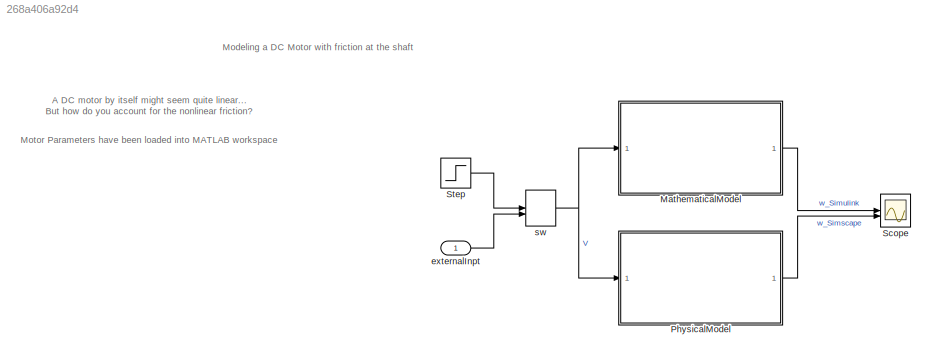
MODEL slx_268a406a92d4
KIND model
CONFIG AbsTol = auto
CONFIG EnableMultiTasking = off
CONFIG FixedStep = auto
CONFIG MaxStep = auto
CONFIG MinStep = auto
CONFIG RelTol = 1e-3
CONFIG SampleTimeConstraint = Unconstrained
CONFIG SolverName = VariableStepAuto
CONFIG StartTime = 0.0
CONFIG StopTime = 10.0
WORKSPACE source: mxarray member
WORKSPACE J = 0.0946866703633
WORKSPACE K = 0.477771340295
WORKSPACE L = 0.000316454712175
WORKSPACE R = 4.99938152603
WORKSPACE Tbrk = 0.001
WORKSPACE Tcolumb = 0.001
WORKSPACE Ts = 0.01
WORKSPACE Tvis = 0.001
WORKSPACE b = 0.921434142151
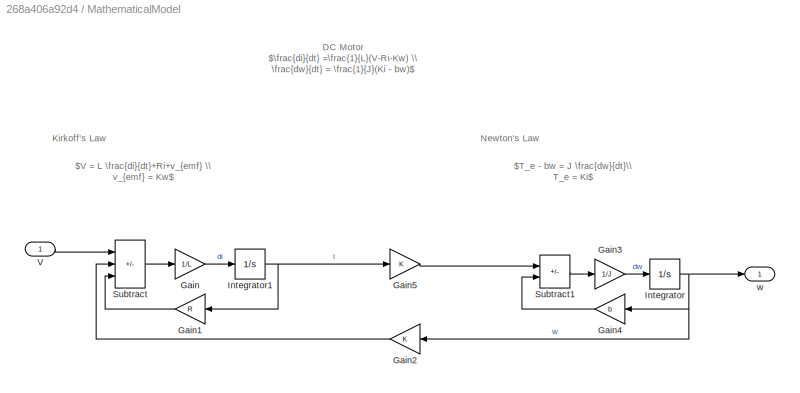
BLOCK [SubSystem] MathematicalModel
BLOCK [Gain] MathematicalModel/Gain
  Gain = 1/L
BLOCK [Gain] MathematicalModel/Gain1
  Gain = R
BLOCK [Gain] MathematicalModel/Gain2
  Gain = K
BLOCK [Gain] MathematicalModel/Gain3
  Gain = 1/J
BLOCK [Gain] MathematicalModel/Gain4
  Gain = b
BLOCK [Gain] MathematicalModel/Gain5
  Gain = K
BLOCK [Integrator] MathematicalModel/Integrator
BLOCK [Integrator] MathematicalModel/Integrator1
BLOCK [Sum] MathematicalModel/Subtract
  IconShape = rectangular
  Inputs = +--
BLOCK [Sum] MathematicalModel/Subtract1
  IconShape = rectangular
  Inputs = +-
BLOCK [Inport] MathematicalModel/V
BLOCK [Outport] MathematicalModel/w
  VectorParamsAs1DForOutWhenUnconnected = off
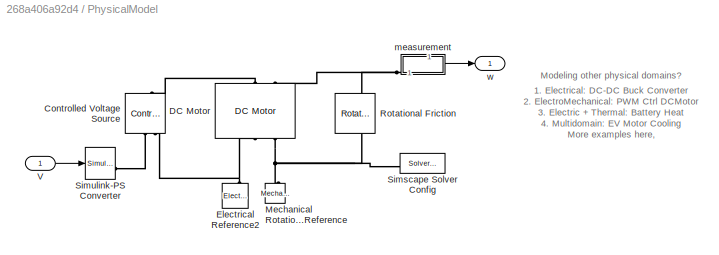
BLOCK [SubSystem] PhysicalModel
BLOCK [Reference] PhysicalModel/Controlled Voltage Source  REF=fl_lib/Electrical/Electrical Sources/Controlled Voltage
Source
  NameLocation = left
  SourceBlock = fl_lib/Electrical/Electrical Sources/Controlled Voltage\nSource
  SourceType = Controlled Voltage\nSource
BLOCK [Reference] PhysicalModel/DC Motor  REF=ee_lib/Electromechanical/Brushed Motors/DC Motor
  NameLocation = left
  SourceBlock = ee_lib/Electromechanical/Brushed Motors/DC Motor
  SourceType = DC Motor
BLOCK [Reference] PhysicalModel/Electrical Reference2  REF=fl_lib/Electrical/Electrical Elements/Electrical Reference
  NameLocation = right
  SourceBlock = fl_lib/Electrical/Electrical Elements/Electrical Reference
  SourceType = Electrical Reference
BLOCK [Reference] PhysicalModel/Mechanical Rotational Reference  REF=fl_lib/Mechanical/Rotational Elements/Mechanical
Rotational Reference
  NameLocation = left
  SourceBlock = fl_lib/Mechanical/Rotational Elements/Mechanical\nRotational Reference
  SourceType = Mechanical\nRotational Reference
BLOCK [Reference] PhysicalModel/Rotational Friction  REF=fl_lib/Mechanical/Rotational Elements/Rotational Friction
  NameLocation = top
  SourceBlock = fl_lib/Mechanical/Rotational Elements/Rotational Friction
  SourceType = Rotational Friction
BLOCK [Reference] PhysicalModel/Simscape Solver Config  REF=nesl_utility/Solver
Configuration
  SourceBlock = nesl_utility/Solver\nConfiguration
  SourceType = Solver\nConfiguration
BLOCK [Reference] PhysicalModel/Simulink-PS Converter  REF=nesl_utility/Simulink-PS
Converter
  SourceBlock = nesl_utility/Simulink-PS\nConverter
  SourceType = Simulink-PS\nConverter
BLOCK [Inport] PhysicalModel/V
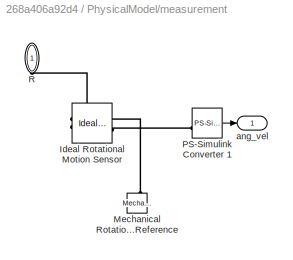
BLOCK [SubSystem] PhysicalModel/measurement
  PortSchema = {"entries":[{"content":{"sides":[{"content":{"connectorIds":[]},"type":"ConnectorPlacement.EquallySpacedRectSide","uuid":"abba8c98-b5a4-4c4c-8426-d04bb5bd8376"},{"content":{"connectorIds":[],"side":"RIGHT"},"type":"ConnectorPlacement.EquallySpacedRectSide","uuid":"4c88a845-695e-489f-8958-399be31258ba"},{"content":{"connectorIds":["LConn1"],"side":"TOP"},"type":"ConnectorPlacement.EquallySpacedRect...<+387ch>
BLOCK [Reference] PhysicalModel/measurement/Ideal Rotational Motion Sensor  REF=fl_lib/Mechanical/Mechanical Sensors/Ideal Rotational
Motion Sensor
  NameLocation = top
  SourceBlock = fl_lib/Mechanical/Mechanical Sensors/Ideal Rotational\nMotion Sensor
  SourceType = Ideal Rotational\nMotion Sensor
BLOCK [Reference] PhysicalModel/measurement/Mechanical Rotational Reference  REF=fl_lib/Mechanical/Rotational Elements/Mechanical
Rotational Reference
  NameLocation = right
  SourceBlock = fl_lib/Mechanical/Rotational Elements/Mechanical\nRotational Reference
  SourceType = Mechanical\nRotational Reference
BLOCK [Reference] PhysicalModel/measurement/PS-Simulink Converter 1  REF=nesl_utility/PS-Simulink
Converter
  SourceBlock = nesl_utility/PS-Simulink\nConverter
  SourceType = PS-Simulink\nConverter
BLOCK [PMIOPort] PhysicalModel/measurement/R
  NameLocation = left
  Side = Left
BLOCK [Outport] PhysicalModel/measurement/ang_vel
BLOCK [Outport] PhysicalModel/w
  VectorParamsAs1DForOutWhenUnconnected = off
BLOCK [Scope] Scope
  Floating = off
  NumInputPorts = 2
  ScopeSpecificationString = Simulink.scopes.TimeScopeBlockCfg('CurrentConfiguration', extmgr.ConfigurationSet(extmgr.Configuration('Core','General UI',true),extmgr.Configuration('Core','Source UI',true),extmgr.Configuration('Sources','WiredSimulink',true),extmgr.Configuration('Visuals','Time Domain',true,'SerializedDisplays',{struct('MinYLimReal','-0.06176','MaxYLimReal','0.55586','YLabelReal','','MinYLimMag','0.00000','MaxY...<+1346ch>
BLOCK [Step] Step
  After = 5
  AttributesFormatString = 5V Input
  SampleTime = 0
  Time = 2
BLOCK [Inport] externalInpt
BLOCK [ManualSwitch] sw
ANNOTATION (root): Motor Parameters have been loaded into MATLAB workspace
ANNOTATION (root): Modeling a DC Motor with friction at the shaft
ANNOTATION (root): A DC motor by itself might seem quite linear... But how do you account for the nonlinear friction?
ANNOTATION MathematicalModel: DC Motor $\frac{di}{dt} =\frac{1}{L}(V-Ri-Kw) \\ \frac{dw}{dt} = \frac{1}{J}(Ki - bw)$
ANNOTATION MathematicalModel: $T_e - bw = J \frac{dw}{dt}\\ T_e = Ki$
ANNOTATION MathematicalModel: $V = L \frac{di}{dt}+Ri+v_{emf} \\ v_{emf} = Kw$
ANNOTATION MathematicalModel: Kirkoff's Law
ANNOTATION MathematicalModel: Newton's Law
ANNOTATION PhysicalModel: 1. Electrical: DC-DC Buck Converter 2. ElectroMechanical: PWM Ctrl DCMotor 3. Electric + Thermal: Battery Heat 4. Multidomain: EV Motor Cooling More examples here ,
ANNOTATION PhysicalModel: Modeling other physical domains?
LINE MathematicalModel/Gain1:1 -> MathematicalModel/Subtract:3
LINE MathematicalModel/Gain2:1 -> MathematicalModel/Subtract:2
LINE MathematicalModel/Gain3:1 -> MathematicalModel/Integrator:1
LINE MathematicalModel/Gain4:1 -> MathematicalModel/Subtract1:2
LINE MathematicalModel/Gain5:1 -> MathematicalModel/Subtract1:1
LINE MathematicalModel/Gain:1 -> MathematicalModel/Integrator1:1
NET MathematicalModel/Integrator1:1 -> MathematicalModel/Gain1:1, MathematicalModel/Gain5:1
NET MathematicalModel/Integrator:1 -> MathematicalModel/Gain2:1, MathematicalModel/Gain4:1, MathematicalModel/w:1
LINE MathematicalModel/Subtract1:1 -> MathematicalModel/Gain3:1
LINE MathematicalModel/Subtract:1 -> MathematicalModel/Gain:1
LINE MathematicalModel/V:1 -> MathematicalModel/Subtract:1
LINE MathematicalModel:1 -> Scope:1
LINE PhysicalModel/V:1 -> PhysicalModel/Simulink-PS Converter:1
LINE PhysicalModel/measurement/PS-Simulink Converter 1:1 -> PhysicalModel/measurement/ang_vel:1
LINE PhysicalModel/measurement:1 -> PhysicalModel/w:1
LINE PhysicalModel:1 -> Scope:2
LINE Step:1 -> sw:1
LINE externalInpt:1 -> sw:2
NET sw:1 -> MathematicalModel:1, PhysicalModel:1
PLINE PhysicalModel/Controlled Voltage Source:LConn1 -- PhysicalModel/DC Motor:LConn1
PLINE PhysicalModel/Controlled Voltage Source:RConn1 -- PhysicalModel/Simulink-PS Converter:RConn1
PNET net1: PhysicalModel/Controlled Voltage Source:RConn2 -- PhysicalModel/DC Motor:RConn1 -- PhysicalModel/Electrical Reference2:LConn1
PNET net2: PhysicalModel/DC Motor:LConn2 -- PhysicalModel/Rotational Friction:LConn1 -- PhysicalModel/measurement:LConn1
PNET net3: PhysicalModel/DC Motor:RConn2 -- PhysicalModel/Mechanical Rotational Reference:LConn1 -- PhysicalModel/Rotational Friction:RConn1 -- PhysicalModel/Simscape Solver Config:RConn1
PLINE PhysicalModel/measurement/Ideal Rotational Motion Sensor:LConn1 -- PhysicalModel/measurement/R:RConn1
PLINE PhysicalModel/measurement/Ideal Rotational Motion Sensor:RConn1 -- PhysicalModel/measurement/Mechanical Rotational Reference:LConn1
PLINE PhysicalModel/measurement/Ideal Rotational Motion Sensor:RConn2 -- PhysicalModel/measurement/PS-Simulink Converter 1:LConn1
note: NET lines group one-source signal fan-out (src -> all destinations, sorted); 1:1 wires keep LINE; PNET lines group multi-terminal physical nets as a canonical sorted terminal list (undirected conserving connections); 2-terminal nets keep the pairwise PLINE form
